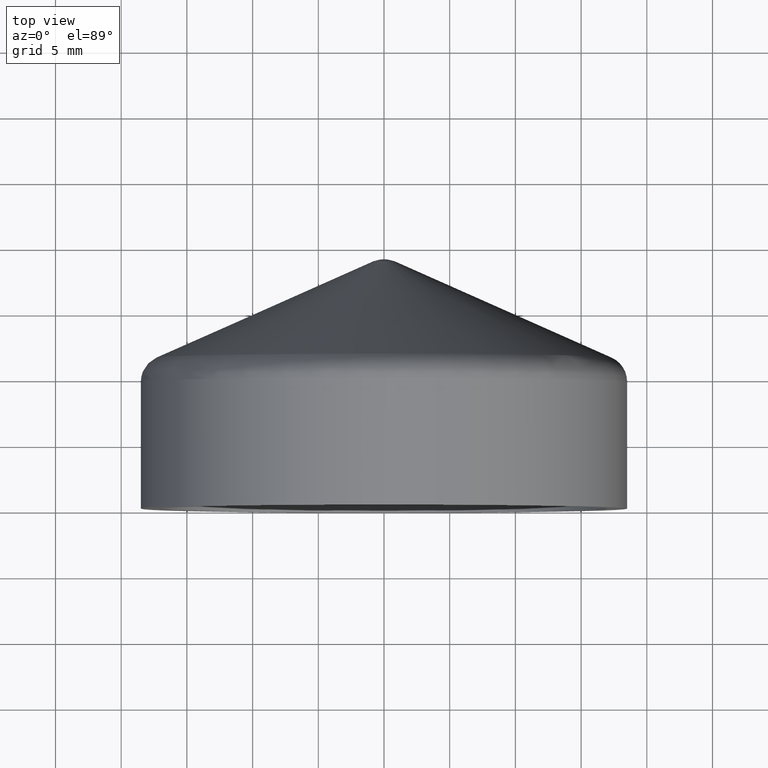
[diagram: clean part render]
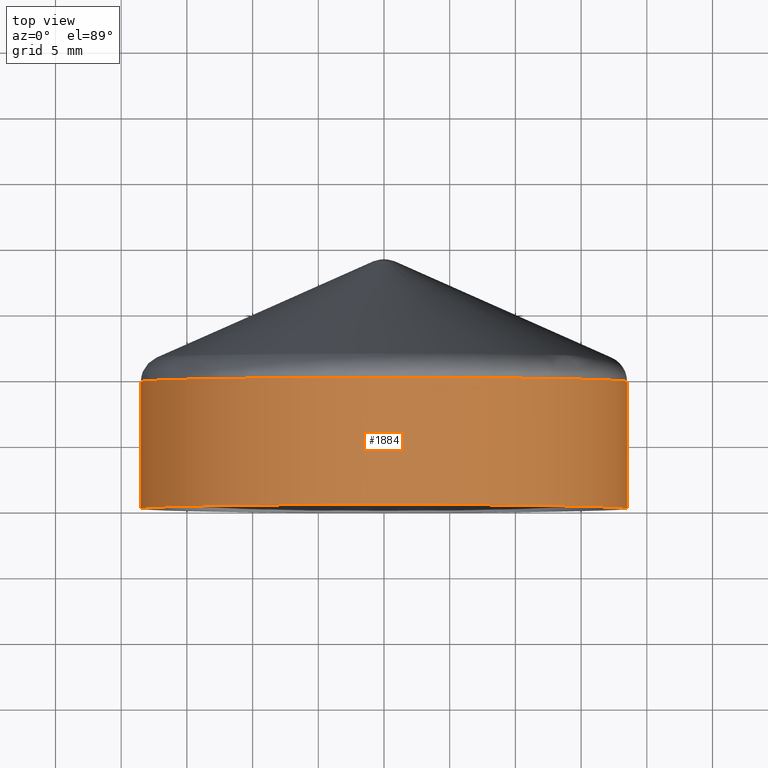
[diagram: same view with one face highlighted and labeled with its STEP entity id]
A machine part, top view. The second image highlights one B-rep face of the part: STEP entity #1884.
In plain terms, the highlighted cylindrical surface (bore or boss wall) has radius 18.5 mm, axis along (0, -1, -0).
Its self-contained STEP definition (entity closure, byte-faithful):
#141 = CARTESIAN_POINT ( 'NONE',  ( 3.878048197299957200E-016, 0.0000000000000000000, 0.0000000000000000000 ) ) ;
#156 = DIRECTION ( 'NONE',  ( 2.041077998578925000E-017, -1.000000000000000000, -0.0000000000000000000 ) ) ;
#176 = AXIS2_PLACEMENT_3D ( 'NONE', #7788, #1288, #7694 ) ;
#379 = EDGE_CURVE ( 'NONE', #3161, #3161, #915, .T. ) ;
#791 = FACE_OUTER_BOUND ( 'NONE', #7637, .T. ) ;
#858 = DIRECTION ( 'NONE',  ( 2.041077998578925000E-017, -1.000000000000000000, -0.0000000000000000000 ) ) ;
#915 = CIRCLE ( 'NONE', #3253, 18.50000000000000000 ) ;
#1288 = DIRECTION ( 'NONE',  ( 2.041077998578925000E-017, -1.000000000000000000, -0.0000000000000000000 ) ) ;
#1743 = EDGE_CURVE ( 'NONE', #9027, #9027, #7457, .T. ) ;
#1884 = ADVANCED_FACE ( 'NONE', ( #2687, #791 ), #2476, .T. ) ;
#2092 = AXIS2_PLACEMENT_3D ( 'NONE', #7863, #156, #3745 ) ;
#2476 = CYLINDRICAL_SURFACE ( 'NONE', #176, 18.49999999999999600 ) ;
#2687 = FACE_OUTER_BOUND ( 'NONE', #3294, .T. ) ;
#3161 = VERTEX_POINT ( 'NONE', #8303 ) ;
#3253 = AXIS2_PLACEMENT_3D ( 'NONE', #141, #858, #8558 ) ;
#3294 = EDGE_LOOP ( 'NONE', ( #8667 ) ) ;
#3745 = DIRECTION ( 'NONE',  ( 1.000000000000000000, 0.0000000000000000000, 0.0000000000000000000 ) ) ;
#4078 = ORIENTED_EDGE ( 'NONE', *, *, #379, .F. ) ;
#7457 = CIRCLE ( 'NONE', #2092, 18.49999999999999600 ) ;
#7637 = EDGE_LOOP ( 'NONE', ( #4078 ) ) ;
#7694 = DIRECTION ( 'NONE',  ( 1.000000000000000000, 0.0000000000000000000, 0.0000000000000000000 ) ) ;
#7788 = CARTESIAN_POINT ( 'NONE',  ( 3.061616997868383000E-017, 17.50000000000000000, 0.0000000000000000000 ) ) ;
#7863 = CARTESIAN_POINT ( 'NONE',  ( 1.903886640397771500E-016, 9.672151472293910100, 0.0000000000000000000 ) ) ;
#8303 = CARTESIAN_POINT ( 'NONE',  ( 18.50000000000000000, 3.775994297371011200E-016, 0.0000000000000000000 ) ) ;
#8558 = DIRECTION ( 'NONE',  ( 1.000000000000000000, 2.041077998578925000E-017, 0.0000000000000000000 ) ) ;
#8667 = ORIENTED_EDGE ( 'NONE', *, *, #1743, .T. ) ;
#9027 = VERTEX_POINT ( 'NONE', #9177 ) ;
#9177 = CARTESIAN_POINT ( 'NONE',  ( 18.49999999999999600, 9.672151472293910100, 0.0000000000000000000 ) ) ;